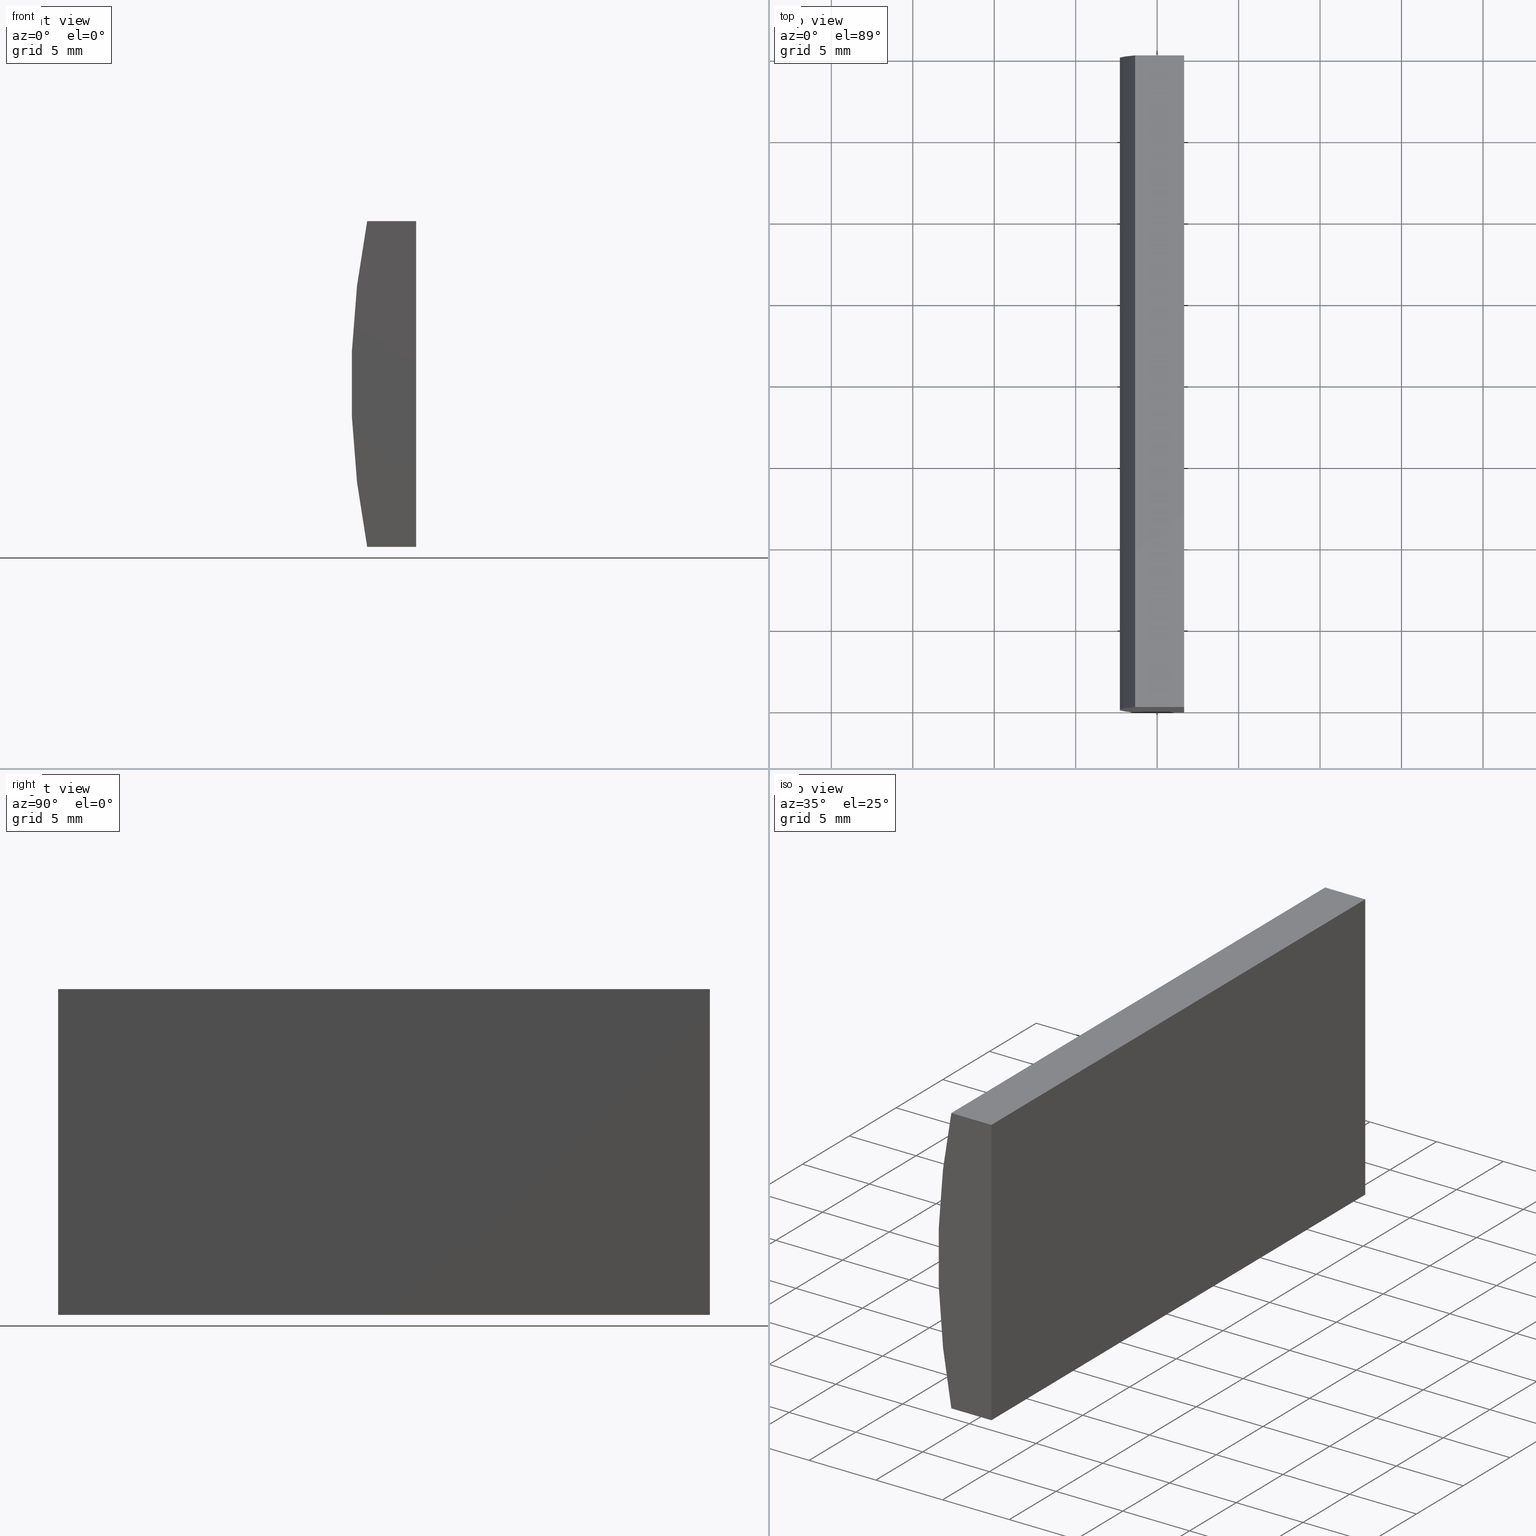
[diagram: canonical four-view strip — front | top / right | iso, engineering-drawing reading convention]
A machine part, canonical four-view strip (front | top / right | iso — engineering-drawing reading convention). The complete STEP part file that produces these views, byte-faithful:
ISO-10303-21;
HEADER;
FILE_DESCRIPTION (( 'STEP AP214' ),
    '1' );
FILE_NAME ('155049.STEP',
    '2019-06-18T05:55:16',
    ( 'user' ),
    ( '΢���й�' ),
    'SwSTEP 2.0',
    'SolidWorks 2016',
    '' );
FILE_SCHEMA (( 'AUTOMOTIVE_DESIGN' ));
ENDSEC;

DATA;
#1 = DIRECTION ( 'NONE',  ( 0.0000000000000000000, 1.000000000000000000, 0.0000000000000000000 ) ) ;
#2 = ORIENTED_EDGE ( 'NONE', *, *, #190, .T. ) ;
#3 = EDGE_LOOP ( 'NONE', ( #181, #153, #2, #163 ) ) ;
#4 = AXIS2_PLACEMENT_3D ( 'NONE', #59, #150, #152 ) ;
#5 = ORIENTED_EDGE ( 'NONE', *, *, #121, .T. ) ;
#6 = EDGE_LOOP ( 'NONE', ( #50, #60, #40, #56 ) ) ;
#7 = EDGE_CURVE ( 'NONE', #79, #186, #159, .T. ) ;
#8 = APPLICATION_PROTOCOL_DEFINITION ( 'draft international standard', 'automotive_design', 1998, #9 ) ;
#9 = APPLICATION_CONTEXT ( 'automotive_design' ) ;
#10 = CARTESIAN_POINT ( 'NONE',  ( -46.34807366568830400, 40.00000000000000000, 10.00000000000000000 ) ) ;
#11 = CARTESIAN_POINT ( 'NONE',  ( 4.355204334851265500, 0.0000000000000000000, 4.286263797015675000E-017 ) ) ;
#12 = CARTESIAN_POINT ( 'NONE',  ( -46.34807366568831100, 40.00000000000000000, -10.00000000000000000 ) ) ;
#13 = DIRECTION ( 'NONE',  ( 1.000000000000000000, 0.0000000000000000000, 2.310440093344863800E-015 ) ) ;
#14 = CARTESIAN_POINT ( 'NONE',  ( 0.0000000000000000000, 0.0000000000000000000, 0.0000000000000000000 ) ) ;
#15 = AXIS2_PLACEMENT_3D ( 'NONE', #162, #44, #154 ) ;
#16 = VECTOR ( 'NONE', #36, 1000.000000000000000 ) ;
#17 = PRESENTATION_STYLE_ASSIGNMENT (( #92 ) ) ;
#18 = CARTESIAN_POINT ( 'NONE',  ( -43.34479566514873000, 40.00000000000000000, 10.00000000000000000 ) ) ;
#19 =( NAMED_UNIT ( * ) SI_UNIT ( $, .STERADIAN. ) SOLID_ANGLE_UNIT ( ) );
#20 = DIRECTION ( 'NONE',  ( 1.000000000000000000, 0.0000000000000000000, 0.0000000000000000000 ) ) ;
#21 = CARTESIAN_POINT ( 'NONE',  ( -46.34807366568830400, 0.0000000000000000000, 10.00000000000000000 ) ) ;
#22 = PLANE ( 'NONE',  #133 ) ;
#23 = CARTESIAN_POINT ( 'NONE',  ( -43.34479566514873700, 0.0000000000000000000, -9.999999999999992900 ) ) ;
#24 = FACE_OUTER_BOUND ( 'NONE', #63, .T. ) ;
#25 = CLOSED_SHELL ( 'NONE', ( #178, #30, #96, #117, #64, #81 ) ) ;
#26 = LINE ( 'NONE', #146, #16 ) ;
#27 = PLANE ( 'NONE',  #174 ) ;
#28 = LINE ( 'NONE', #21, #68 ) ;
#29 = DIRECTION ( 'NONE',  ( 3.469446951953615200E-016, 0.0000000000000000000, 1.000000000000000000 ) ) ;
#30 = ADVANCED_FACE ( 'NONE', ( #93 ), #179, .F. ) ;
#31 = PLANE ( 'NONE',  #62 ) ;
#32 = DIRECTION ( 'NONE',  ( 0.0000000000000000000, 0.0000000000000000000, 1.000000000000000000 ) ) ;
#33 = MANIFOLD_SOLID_BREP ( '͹̨-����1', #25 ) ;
#34 = CARTESIAN_POINT ( 'NONE',  ( -43.34479566514873700, 40.00000000000000000, -9.999999999999992900 ) ) ;
#35 = VECTOR ( 'NONE', #166, 1000.000000000000000 ) ;
#36 = DIRECTION ( 'NONE',  ( -3.469446951953615200E-016, -0.0000000000000000000, -1.000000000000000000 ) ) ;
#37 = EDGE_CURVE ( 'NONE', #84, #106, #26, .T. ) ;
#38 = DIRECTION ( 'NONE',  ( -0.0000000000000000000, -1.000000000000000000, -0.0000000000000000000 ) ) ;
#39 = CARTESIAN_POINT ( 'NONE',  ( -46.34807366568831100, 40.00000000000000000, -10.00000000000000000 ) ) ;
#40 = ORIENTED_EDGE ( 'NONE', *, *, #139, .F. ) ;
#41 = EDGE_CURVE ( 'NONE', #79, #136, #54, .T. ) ;
#42 = ORIENTED_EDGE ( 'NONE', *, *, #52, .F. ) ;
#43 = ORIENTED_EDGE ( 'NONE', *, *, #99, .F. ) ;
#44 = DIRECTION ( 'NONE',  ( 0.0000000000000000000, 0.0000000000000000000, -1.000000000000000000 ) ) ;
#45 = ORIENTED_EDGE ( 'NONE', *, *, #37, .F. ) ;
#46 = EDGE_CURVE ( 'NONE', #195, #79, #151, .T. ) ;
#47 = CARTESIAN_POINT ( 'NONE',  ( -46.34807366568830400, 0.0000000000000000000, 10.00000000000000000 ) ) ;
#48 = APPLICATION_PROTOCOL_DEFINITION ( 'draft international standard', 'automotive_design', 1998, #182 ) ;
#49 = LINE ( 'NONE', #18, #113 ) ;
#50 = ORIENTED_EDGE ( 'NONE', *, *, #97, .T. ) ;
#51 = VECTOR ( 'NONE', #38, 1000.000000000000000 ) ;
#52 = EDGE_CURVE ( 'NONE', #106, #186, #58, .T. ) ;
#53 = ORIENTED_EDGE ( 'NONE', *, *, #37, .T. ) ;
#54 = CIRCLE ( 'NONE', #67, 51.68000000000000700 ) ;
#55 = EDGE_CURVE ( 'NONE', #136, #171, #108, .T. ) ;
#56 = ORIENTED_EDGE ( 'NONE', *, *, #55, .T. ) ;
#57 = LINE ( 'NONE', #10, #65 ) ;
#58 = LINE ( 'NONE', #188, #35 ) ;
#59 = CARTESIAN_POINT ( 'NONE',  ( 4.355204334851265500, 40.00000000000000000, 4.286263797015675000E-017 ) ) ;
#60 = ORIENTED_EDGE ( 'NONE', *, *, #109, .F. ) ;
#61 =( GEOMETRIC_REPRESENTATION_CONTEXT ( 3 ) GLOBAL_UNCERTAINTY_ASSIGNED_CONTEXT ( ( #138 ) ) GLOBAL_UNIT_ASSIGNED_CONTEXT ( ( #155, #76, #95 ) ) REPRESENTATION_CONTEXT ( 'NONE', 'WORKASPACE' ) );
#62 = AXIS2_PLACEMENT_3D ( 'NONE', #128, #131, #132 ) ;
#63 = EDGE_LOOP ( 'NONE', ( #80, #104, #90, #173 ) ) ;
#64 = ADVANCED_FACE ( 'NONE', ( #66 ), #22, .T. ) ;
#65 = VECTOR ( 'NONE', #184, 1000.000000000000000 ) ;
#66 = FACE_OUTER_BOUND ( 'NONE', #3, .T. ) ;
#67 = AXIS2_PLACEMENT_3D ( 'NONE', #194, #196, #201 ) ;
#68 = VECTOR ( 'NONE', #20, 1000.000000000000000 ) ;
#69 = FILL_AREA_STYLE_COLOUR ( '', #176 ) ;
#70 = SURFACE_STYLE_FILL_AREA ( #127 ) ;
#71 = PRESENTATION_STYLE_ASSIGNMENT (( #116 ) ) ;
#72 = CARTESIAN_POINT ( 'NONE',  ( -46.34807366568831100, 40.00000000000000000, -10.00000000000000000 ) ) ;
#73 = PRODUCT_DEFINITION_SHAPE ( 'NONE', 'NONE',  #120 ) ;
#74 =( LENGTH_UNIT ( ) NAMED_UNIT ( * ) SI_UNIT ( .MILLI., .METRE. ) );
#75 = MECHANICAL_DESIGN_GEOMETRIC_PRESENTATION_REPRESENTATION (  '', ( #161 ), #83 ) ;
#76 =( NAMED_UNIT ( * ) PLANE_ANGLE_UNIT ( ) SI_UNIT ( $, .RADIAN. ) );
#77 = CARTESIAN_POINT ( 'NONE',  ( -46.34807366568831100, 0.0000000000000000000, -10.00000000000000000 ) ) ;
#78 = ORIENTED_EDGE ( 'NONE', *, *, #109, .T. ) ;
#79 = VERTEX_POINT ( 'NONE', #72 ) ;
#80 = ORIENTED_EDGE ( 'NONE', *, *, #99, .T. ) ;
#81 = ADVANCED_FACE ( 'NONE', ( #101 ), #31, .F. ) ;
#82 =( NAMED_UNIT ( * ) PLANE_ANGLE_UNIT ( ) SI_UNIT ( $, .RADIAN. ) );
#83 =( GEOMETRIC_REPRESENTATION_CONTEXT ( 3 ) GLOBAL_UNCERTAINTY_ASSIGNED_CONTEXT ( ( #102 ) ) GLOBAL_UNIT_ASSIGNED_CONTEXT ( ( #87, #123, #167 ) ) REPRESENTATION_CONTEXT ( 'NONE', 'WORKASPACE' ) );
#84 = VERTEX_POINT ( 'NONE', #130 ) ;
#85 = ORIENTED_EDGE ( 'NONE', *, *, #121, .F. ) ;
#86 = PRODUCT_DEFINITION_CONTEXT ( 'detailed design', #9, 'design' ) ;
#87 =( LENGTH_UNIT ( ) NAMED_UNIT ( * ) SI_UNIT ( .MILLI., .METRE. ) );
#88 = ORIENTED_EDGE ( 'NONE', *, *, #52, .T. ) ;
#89 = FACE_OUTER_BOUND ( 'NONE', #100, .T. ) ;
#90 = ORIENTED_EDGE ( 'NONE', *, *, #41, .F. ) ;
#91 = DIRECTION ( 'NONE',  ( 0.0000000000000000000, -0.0000000000000000000, 1.000000000000000000 ) ) ;
#92 = SURFACE_STYLE_USAGE ( .BOTH. , #185 ) ;
#93 = FACE_OUTER_BOUND ( 'NONE', #6, .T. ) ;
#94 = VERTEX_POINT ( 'NONE', #134 ) ;
#95 =( NAMED_UNIT ( * ) SI_UNIT ( $, .STERADIAN. ) SOLID_ANGLE_UNIT ( ) );
#96 = ADVANCED_FACE ( 'NONE', ( #122 ), #149, .F. ) ;
#97 = EDGE_CURVE ( 'NONE', #171, #84, #28, .T. ) ;
#98 = DIRECTION ( 'NONE',  ( -0.0000000000000000000, -1.000000000000000000, -0.0000000000000000000 ) ) ;
#99 = EDGE_CURVE ( 'NONE', #186, #171, #168, .T. ) ;
#100 = EDGE_LOOP ( 'NONE', ( #88, #156, #175, #5 ) ) ;
#101 = FACE_OUTER_BOUND ( 'NONE', #141, .T. ) ;
#102 = UNCERTAINTY_MEASURE_WITH_UNIT (LENGTH_MEASURE( 1.000000000000000100E-005 ), #87, 'distance_accuracy_value', 'NONE');
#103 = ORIENTED_EDGE ( 'NONE', *, *, #190, .F. ) ;
#104 = ORIENTED_EDGE ( 'NONE', *, *, #55, .F. ) ;
#105 = PRESENTATION_LAYER_ASSIGNMENT (  '', '', ( #161 ) ) ;
#106 = VERTEX_POINT ( 'NONE', #23 ) ;
#107 = LINE ( 'NONE', #180, #110 ) ;
#108 = LINE ( 'NONE', #202, #114 ) ;
#109 = EDGE_CURVE ( 'NONE', #94, #84, #49, .T. ) ;
#110 = VECTOR ( 'NONE', #125, 1000.000000000000000 ) ;
#111 = DIRECTION ( 'NONE',  ( 0.0000000000000000000, 1.000000000000000000, 0.0000000000000000000 ) ) ;
#112 = CARTESIAN_POINT ( 'NONE',  ( -43.34479566514873700, 40.00000000000000000, -9.999999999999992900 ) ) ;
#113 = VECTOR ( 'NONE', #98, 1000.000000000000000 ) ;
#114 = VECTOR ( 'NONE', #193, 1000.000000000000000 ) ;
#115 = FILL_AREA_STYLE_COLOUR ( '', #119 ) ;
#116 = SURFACE_STYLE_USAGE ( .BOTH. , #135 ) ;
#117 = ADVANCED_FACE ( 'NONE', ( #89 ), #27, .F. ) ;
#118 = CARTESIAN_POINT ( 'NONE',  ( -46.34807366568830400, 40.00000000000000000, 10.00000000000000000 ) ) ;
#119 = COLOUR_RGB ( '',1.000000000000000000, 1.000000000000000000, 1.000000000000000000 ) ;
#120 = PRODUCT_DEFINITION ( 'δ֪', '', #137, #86 ) ;
#121 = EDGE_CURVE ( 'NONE', #195, #106, #107, .T. ) ;
#122 = FACE_OUTER_BOUND ( 'NONE', #124, .T. ) ;
#123 =( NAMED_UNIT ( * ) PLANE_ANGLE_UNIT ( ) SI_UNIT ( $, .RADIAN. ) );
#124 = EDGE_LOOP ( 'NONE', ( #53, #85, #103, #78 ) ) ;
#125 = DIRECTION ( 'NONE',  ( -0.0000000000000000000, -1.000000000000000000, -0.0000000000000000000 ) ) ;
#126 = PRODUCT ( '155049', '155049', '', ( #189 ) ) ;
#127 = FILL_AREA_STYLE ('',( #69 ) ) ;
#128 = CARTESIAN_POINT ( 'NONE',  ( 4.355204334851265500, 0.0000000000000000000, 4.286263797015675000E-017 ) ) ;
#129 = VECTOR ( 'NONE', #169, 1000.000000000000000 ) ;
#130 = CARTESIAN_POINT ( 'NONE',  ( -43.34479566514873000, 0.0000000000000000000, 10.00000000000000000 ) ) ;
#131 = DIRECTION ( 'NONE',  ( 0.0000000000000000000, 1.000000000000000000, 0.0000000000000000000 ) ) ;
#132 = DIRECTION ( 'NONE',  ( 0.0000000000000000000, -0.0000000000000000000, 1.000000000000000000 ) ) ;
#133 = AXIS2_PLACEMENT_3D ( 'NONE', #204, #111, #91 ) ;
#134 = CARTESIAN_POINT ( 'NONE',  ( -43.34479566514873000, 40.00000000000000000, 10.00000000000000000 ) ) ;
#135 = SURFACE_SIDE_STYLE ('',( #197 ) ) ;
#136 = VERTEX_POINT ( 'NONE', #118 ) ;
#137 = PRODUCT_DEFINITION_FORMATION_WITH_SPECIFIED_SOURCE ( '�κ�', '', #126, .NOT_KNOWN. ) ;
#138 = UNCERTAINTY_MEASURE_WITH_UNIT (LENGTH_MEASURE( 1.000000000000000100E-005 ), #155, 'distance_accuracy_value', 'NONE');
#139 = EDGE_CURVE ( 'NONE', #136, #94, #57, .T. ) ;
#140 = SHAPE_DEFINITION_REPRESENTATION ( #73, #199 ) ;
#141 = EDGE_LOOP ( 'NONE', ( #43, #42, #45, #158 ) ) ;
#142 = AXIS2_PLACEMENT_3D ( 'NONE', #14, #32, #203 ) ;
#143 = DIRECTION ( 'NONE',  ( -2.310440093344863800E-015, 0.0000000000000000000, 1.000000000000000000 ) ) ;
#144 = FILL_AREA_STYLE ('',( #115 ) ) ;
#145 = CARTESIAN_POINT ( 'NONE',  ( -43.34479566514873700, 40.00000000000000000, -9.999999999999992900 ) ) ;
#146 = CARTESIAN_POINT ( 'NONE',  ( -43.34479566514873700, 0.0000000000000000000, -9.999999999999992900 ) ) ;
#147 = PRODUCT_RELATED_PRODUCT_CATEGORY ( 'part', '', ( #126 ) ) ;
#148 = DIRECTION ( 'NONE',  ( 0.0000000000000000000, 0.0000000000000000000, 1.000000000000000000 ) ) ;
#149 = PLANE ( 'NONE',  #170 ) ;
#150 = DIRECTION ( 'NONE',  ( -0.0000000000000000000, -1.000000000000000000, -0.0000000000000000000 ) ) ;
#151 = LINE ( 'NONE', #183, #129 ) ;
#152 = DIRECTION ( 'NONE',  ( 0.0000000000000000000, 0.0000000000000000000, -1.000000000000000000 ) ) ;
#153 = ORIENTED_EDGE ( 'NONE', *, *, #139, .T. ) ;
#154 = DIRECTION ( 'NONE',  ( -1.000000000000000000, 0.0000000000000000000, -0.0000000000000000000 ) ) ;
#155 =( LENGTH_UNIT ( ) NAMED_UNIT ( * ) SI_UNIT ( .MILLI., .METRE. ) );
#156 = ORIENTED_EDGE ( 'NONE', *, *, #7, .F. ) ;
#157 = STYLED_ITEM ( 'NONE', ( #17 ), #199 ) ;
#158 = ORIENTED_EDGE ( 'NONE', *, *, #97, .F. ) ;
#159 = LINE ( 'NONE', #39, #51 ) ;
#160 = CYLINDRICAL_SURFACE ( 'NONE', #4, 51.68000000000000700 ) ;
#161 = STYLED_ITEM ( 'NONE', ( #71 ), #33 ) ;
#162 = CARTESIAN_POINT ( 'NONE',  ( -46.34807366568830400, 40.00000000000000000, 10.00000000000000000 ) ) ;
#163 = ORIENTED_EDGE ( 'NONE', *, *, #46, .T. ) ;
#164 =( GEOMETRIC_REPRESENTATION_CONTEXT ( 3 ) GLOBAL_UNCERTAINTY_ASSIGNED_CONTEXT ( ( #191 ) ) GLOBAL_UNIT_ASSIGNED_CONTEXT ( ( #74, #82, #19 ) ) REPRESENTATION_CONTEXT ( 'NONE', 'WORKASPACE' ) );
#165 = VECTOR ( 'NONE', #198, 1000.000000000000000 ) ;
#166 = DIRECTION ( 'NONE',  ( -1.000000000000000000, -0.0000000000000000000, -2.310440093344863800E-015 ) ) ;
#167 =( NAMED_UNIT ( * ) SI_UNIT ( $, .STERADIAN. ) SOLID_ANGLE_UNIT ( ) );
#168 = CIRCLE ( 'NONE', #187, 51.68000000000000700 ) ;
#169 = DIRECTION ( 'NONE',  ( -1.000000000000000000, -0.0000000000000000000, -2.310440093344863800E-015 ) ) ;
#170 = AXIS2_PLACEMENT_3D ( 'NONE', #112, #172, #29 ) ;
#171 = VERTEX_POINT ( 'NONE', #47 ) ;
#172 = DIRECTION ( 'NONE',  ( -1.000000000000000000, 0.0000000000000000000, 3.469446951953615200E-016 ) ) ;
#173 = ORIENTED_EDGE ( 'NONE', *, *, #7, .T. ) ;
#174 = AXIS2_PLACEMENT_3D ( 'NONE', #12, #143, #13 ) ;
#175 = ORIENTED_EDGE ( 'NONE', *, *, #46, .F. ) ;
#176 = COLOUR_RGB ( '',1.000000000000000000, 1.000000000000000000, 1.000000000000000000 ) ;
#177 = PRESENTATION_LAYER_ASSIGNMENT (  '', '', ( #157 ) ) ;
#178 = ADVANCED_FACE ( 'NONE', ( #24 ), #160, .T. ) ;
#179 = PLANE ( 'NONE',  #15 ) ;
#180 = CARTESIAN_POINT ( 'NONE',  ( -43.34479566514873700, 40.00000000000000000, -9.999999999999992900 ) ) ;
#181 = ORIENTED_EDGE ( 'NONE', *, *, #41, .T. ) ;
#182 = APPLICATION_CONTEXT ( 'automotive_design' ) ;
#183 = CARTESIAN_POINT ( 'NONE',  ( -46.34807366568831100, 40.00000000000000000, -10.00000000000000000 ) ) ;
#184 = DIRECTION ( 'NONE',  ( 1.000000000000000000, 0.0000000000000000000, 0.0000000000000000000 ) ) ;
#185 = SURFACE_SIDE_STYLE ('',( #70 ) ) ;
#186 = VERTEX_POINT ( 'NONE', #77 ) ;
#187 = AXIS2_PLACEMENT_3D ( 'NONE', #11, #1, #148 ) ;
#188 = CARTESIAN_POINT ( 'NONE',  ( -46.34807366568831100, 0.0000000000000000000, -10.00000000000000000 ) ) ;
#189 = PRODUCT_CONTEXT ( 'NONE', #182, 'mechanical' ) ;
#190 = EDGE_CURVE ( 'NONE', #94, #195, #192, .T. ) ;
#191 = UNCERTAINTY_MEASURE_WITH_UNIT (LENGTH_MEASURE( 1.000000000000000100E-005 ), #74, 'distance_accuracy_value', 'NONE');
#192 = LINE ( 'NONE', #145, #165 ) ;
#193 = DIRECTION ( 'NONE',  ( -0.0000000000000000000, -1.000000000000000000, -0.0000000000000000000 ) ) ;
#194 = CARTESIAN_POINT ( 'NONE',  ( 4.355204334851265500, 40.00000000000000000, 4.286263797015675000E-017 ) ) ;
#195 = VERTEX_POINT ( 'NONE', #34 ) ;
#196 = DIRECTION ( 'NONE',  ( 0.0000000000000000000, 1.000000000000000000, 0.0000000000000000000 ) ) ;
#197 = SURFACE_STYLE_FILL_AREA ( #144 ) ;
#198 = DIRECTION ( 'NONE',  ( -3.469446951953615200E-016, -0.0000000000000000000, -1.000000000000000000 ) ) ;
#199 = ADVANCED_BREP_SHAPE_REPRESENTATION ( '155049', ( #33, #142 ), #164 ) ;
#200 = MECHANICAL_DESIGN_GEOMETRIC_PRESENTATION_REPRESENTATION (  '', ( #157 ), #61 ) ;
#201 = DIRECTION ( 'NONE',  ( 0.0000000000000000000, 0.0000000000000000000, 1.000000000000000000 ) ) ;
#202 = CARTESIAN_POINT ( 'NONE',  ( -46.34807366568830400, 40.00000000000000000, 10.00000000000000000 ) ) ;
#203 = DIRECTION ( 'NONE',  ( 1.000000000000000000, 0.0000000000000000000, 0.0000000000000000000 ) ) ;
#204 = CARTESIAN_POINT ( 'NONE',  ( 4.355204334851265500, 40.00000000000000000, 4.286263797015675000E-017 ) ) ;
ENDSEC;
END-ISO-10303-21;
